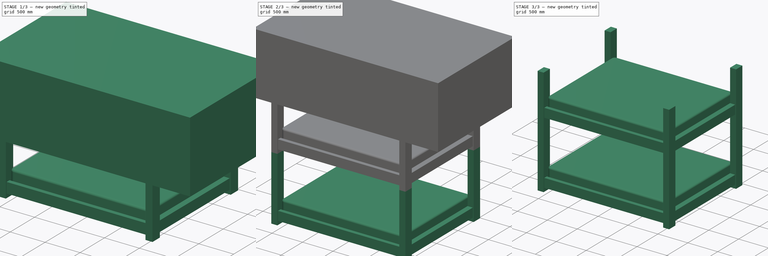
[diagram: build sequence overview — one tinted view per stage of 3, left to right]
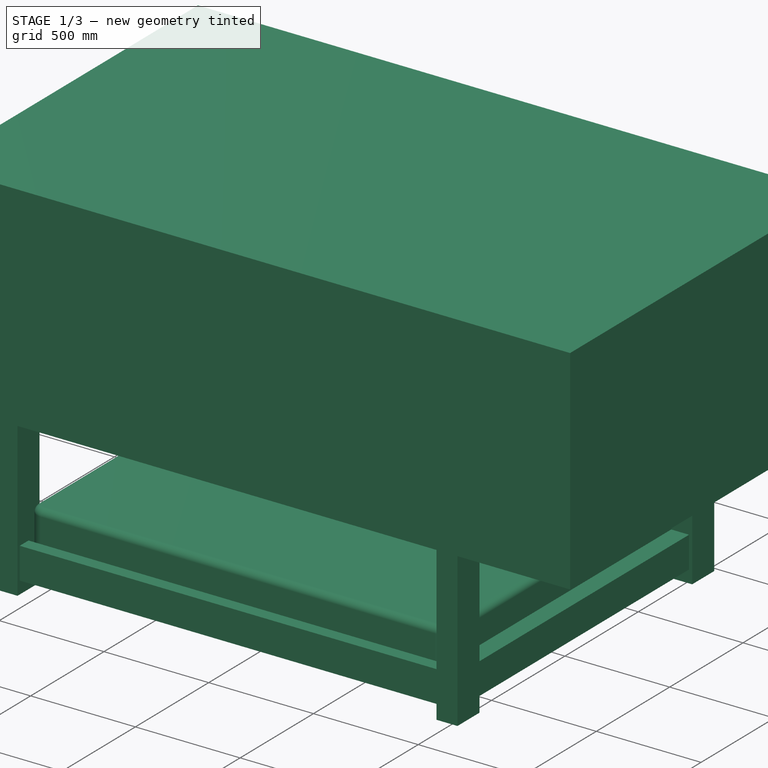
[diagram: stage 1 of 3 — iso view after this stage's code; geometry added in this stage tinted green]
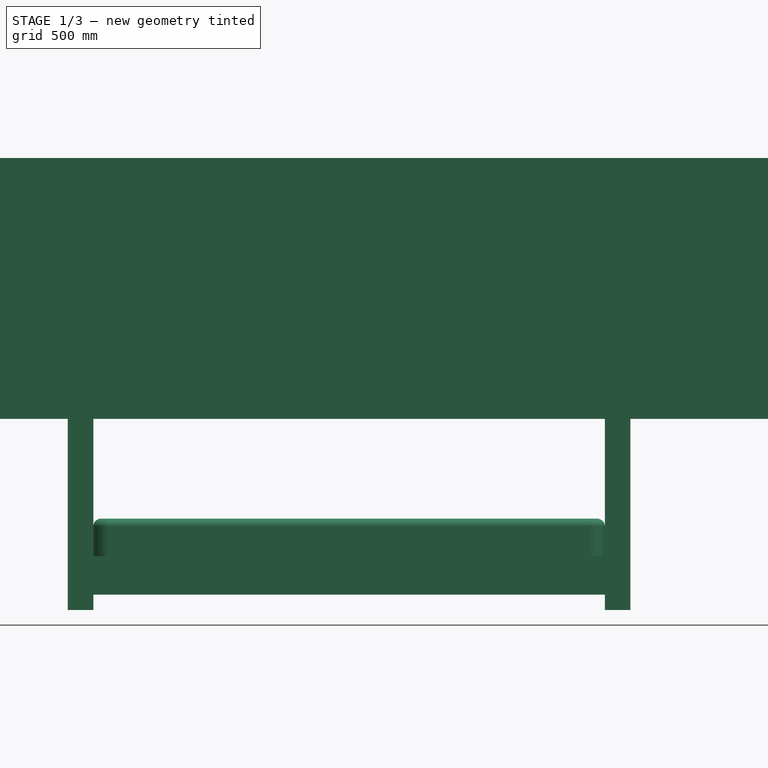
[diagram: stage 1 of 3 — front view after this stage's code; geometry added in this stage tinted green]
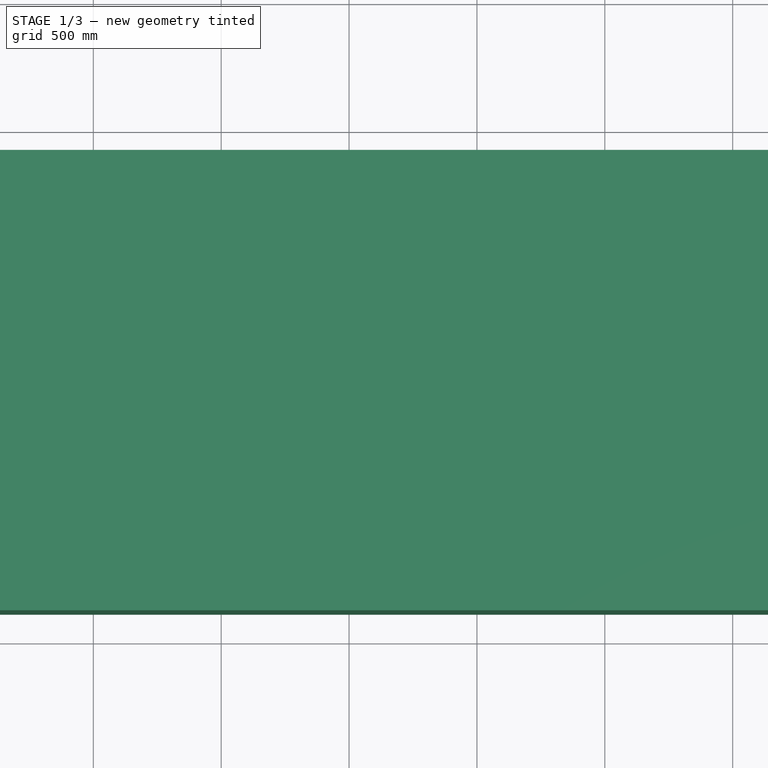
[diagram: stage 1 of 3 — top view after this stage's code; geometry added in this stage tinted green]
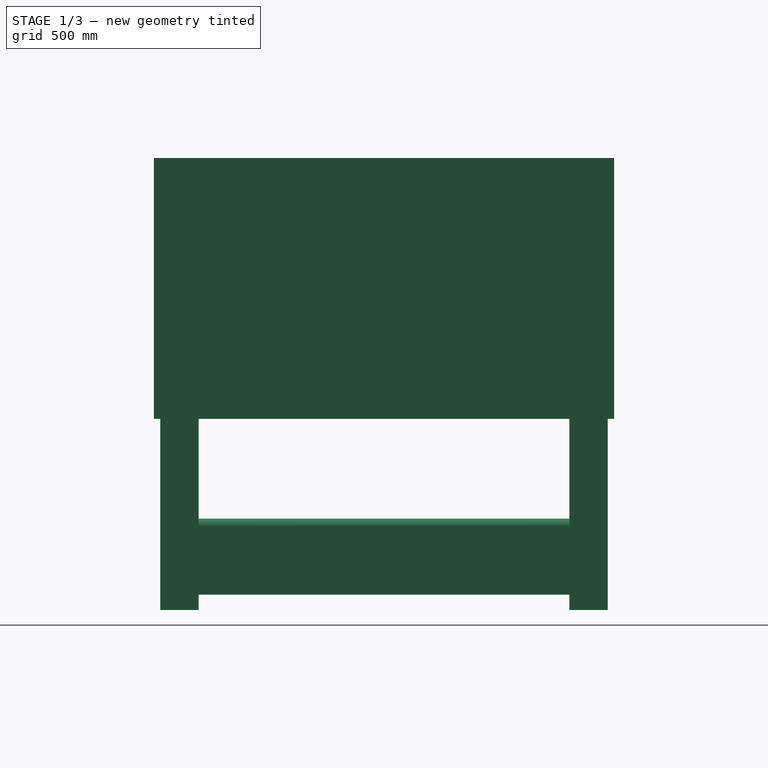
[diagram: stage 1 of 3 — right view after this stage's code; geometry added in this stage tinted green]
FCSTD DOCUMENT  (FreeCAD 0.17R13541 (Git))
Label: 190308 Bett_asm_rev00
License: All rights reserved
LicenseURL: http://en.wikipedia.org/wiki/All_rights_reserved
objects: App::FeaturePython×6, TechDraw::DrawProjGroupItem×6, Drawing::FeatureViewPart×3, Part::FeaturePython×2, Sketcher::SketchObject×2, TechDraw::DrawSVGTemplate×2, TechDraw::DrawProjGroup×2, TechDraw::DrawPage×2, App::Part×1, Part::MultiFuse×1, PartDesign::Pad×1, PartDesign::ShapeBinder×1, PartDesign::Body×1, Part::Cut×1, TechDraw::DrawViewPart×1
note: 10 computed .brp shape members not serialized (recipe doc carries the construction recipe); baked Part::Feature solids carry a one-line shape summary decoded from their .brp

FEATURE [Part::FeaturePython] _90308_Bett_rev00_01001  # a2plus imported part (geometry in sourceFile) (typed FeaturePython)
  Placement = pos=(0,0,1060) rot=(0,0,1;0rad)
  fixedPosition = false
  sourceFile = M:/52 Proj/XX_StudioBinn/Bett/190308 Bett_rev00.FCStd
  timeLastImport = 1.5521e+09
  updateColors = true
FEATURE [Sketcher::SketchObject] Sketch
  MapMode = 5
  Placement = pos=(0,0,0) rot=(1,0,0;1.5708rad)
  Support = -> [XZ_Plane001]
  sketch-geometry (4):
    g0: LineSegment StartX=-1381.83 StartY=2680 StartZ=0 EndX=1655 EndY=2680 EndZ=0
    g1: LineSegment StartX=1655 StartY=2680 StartZ=0 EndX=1655 EndY=1660 EndZ=0
    g2: LineSegment StartX=1655 StartY=1660 StartZ=0 EndX=-1381.83 EndY=1660 EndZ=0
    g3: LineSegment StartX=-1381.83 StartY=1660 StartZ=0 EndX=-1381.83 EndY=2680 EndZ=0
  constraints (8):
    c: Coincident(g0,g1)
    c: Coincident(g1,g2)
    c: Coincident(g2,g3)
    c: Coincident(g3,g0)
    c: Horizontal(g0)
    c: Horizontal(g2)
    c: Vertical(g1)
    c: Vertical(g3)
FEATURE [PartDesign::Pad] Pad
  Length = 1800
  Length2 = 100
  Midplane = true
  Placement = pos=(0,0,0) rot=(1,0,0;1.5708rad)
  Profile = -> Sketch
  Type = 0
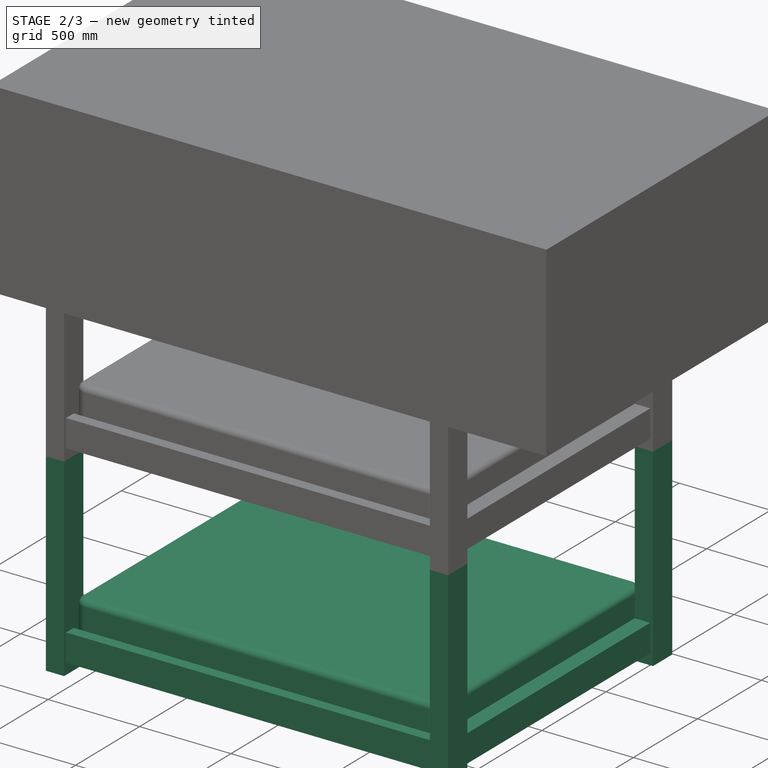
[diagram: stage 2 of 3 — iso view after this stage's code; geometry added in this stage tinted green]
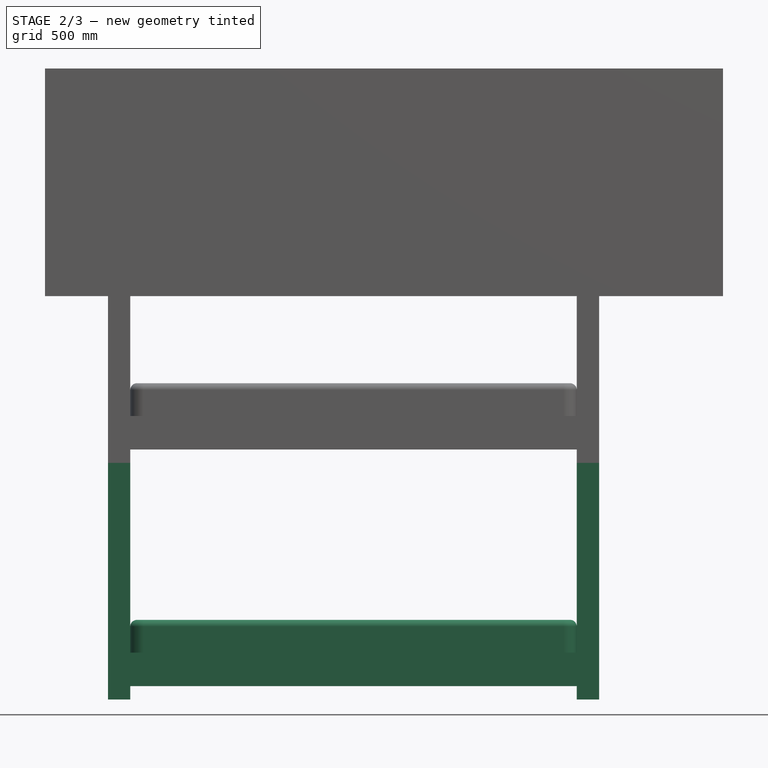
[diagram: stage 2 of 3 — front view after this stage's code; geometry added in this stage tinted green]
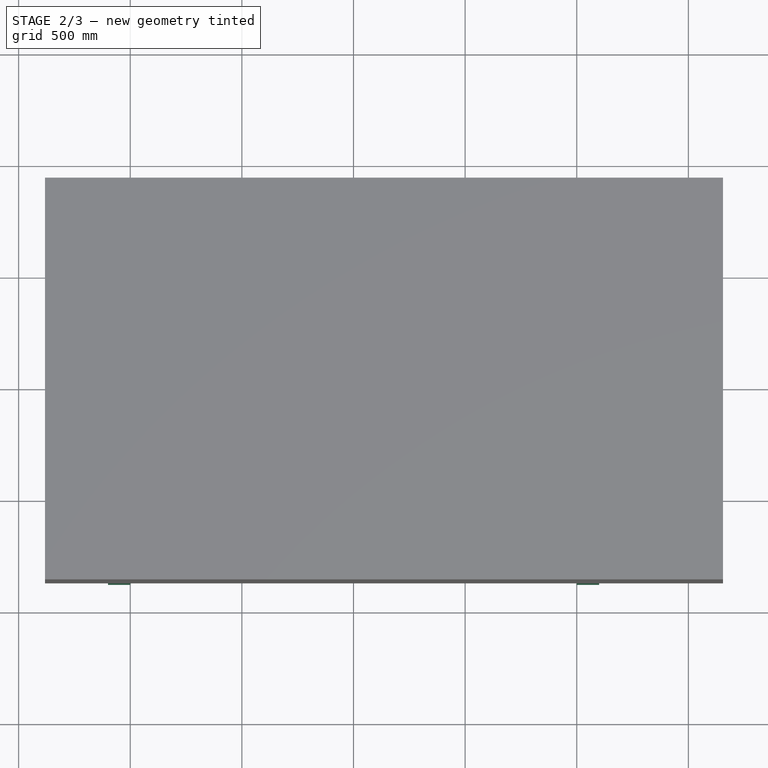
[diagram: stage 2 of 3 — top view after this stage's code; geometry added in this stage tinted green]
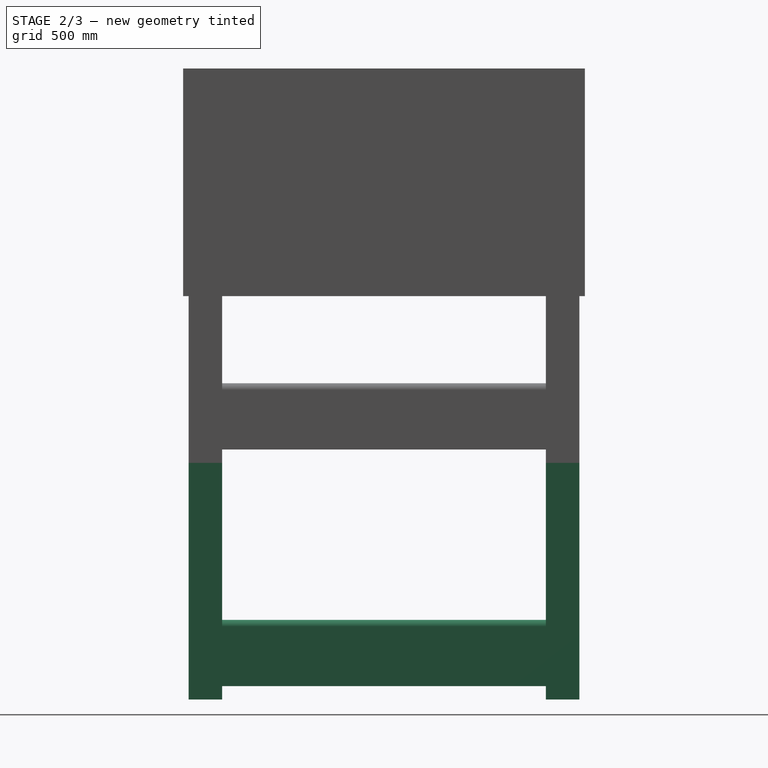
[diagram: stage 2 of 3 — right view after this stage's code; geometry added in this stage tinted green]
FEATURE [App::Part] Part
  License = CC BY 3.0
  LicenseURL = http://creativecommons.org/licenses/by/3.0/
  Origin = -> Origin
FEATURE [Part::FeaturePython] _90308_Bett_rev00_01  # a2plus imported part (geometry in sourceFile) (typed FeaturePython)
  fixedPosition = true
  sourceFile = M:/52 Proj/XX_StudioBinn/Bett/190308 Bett_rev00.FCStd
  timeLastImport = 1.5521e+09
  updateColors = true
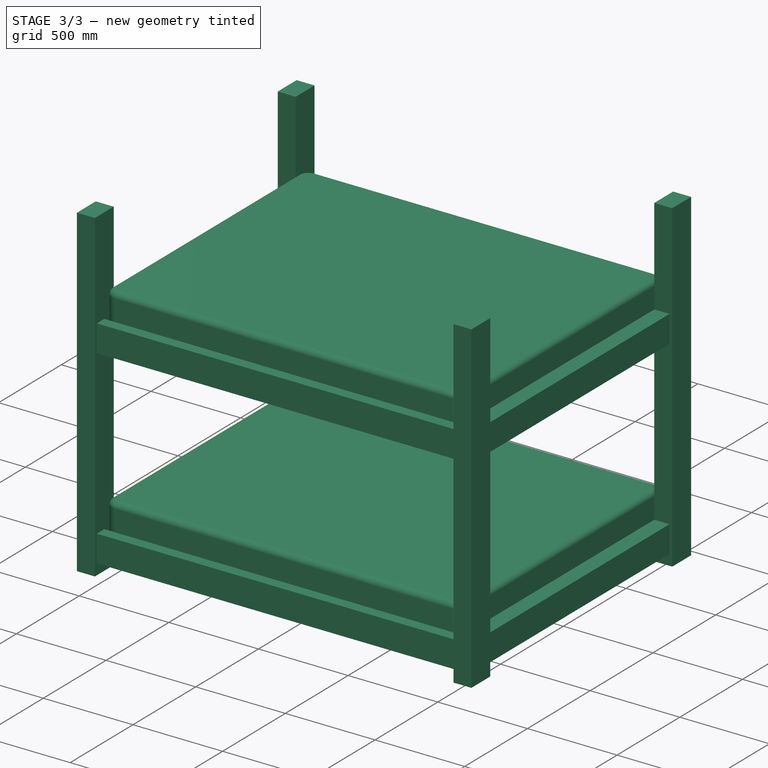
[diagram: stage 3 of 3 — iso view after this stage's code; geometry added in this stage tinted green]
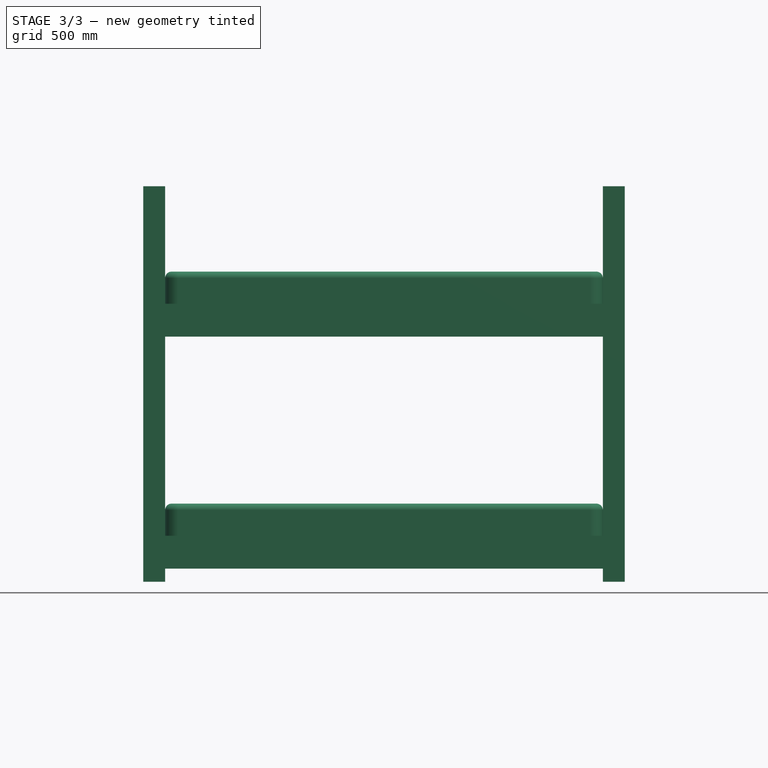
[diagram: stage 3 of 3 — front view after this stage's code; geometry added in this stage tinted green]
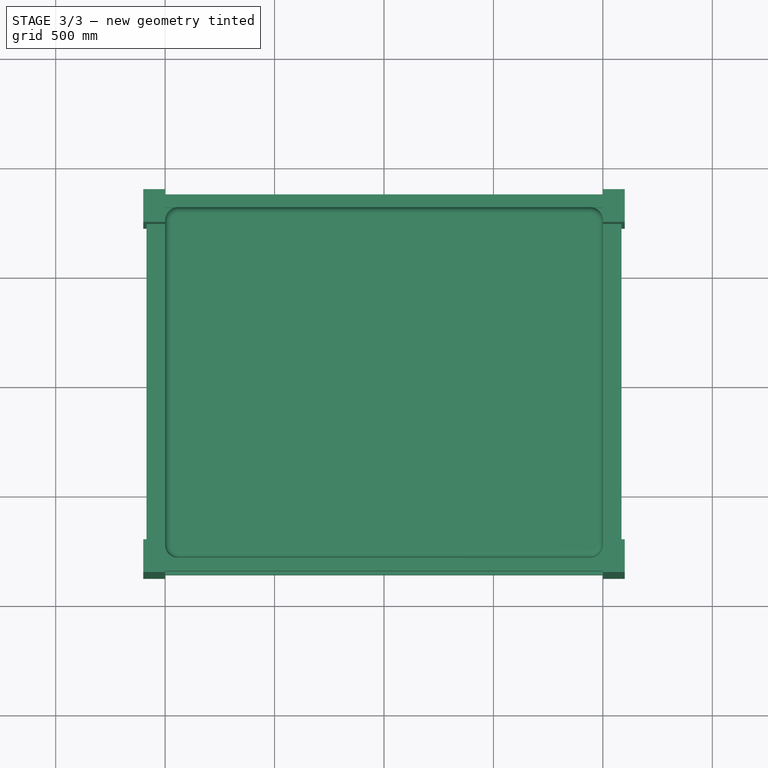
[diagram: stage 3 of 3 — top view after this stage's code; geometry added in this stage tinted green]
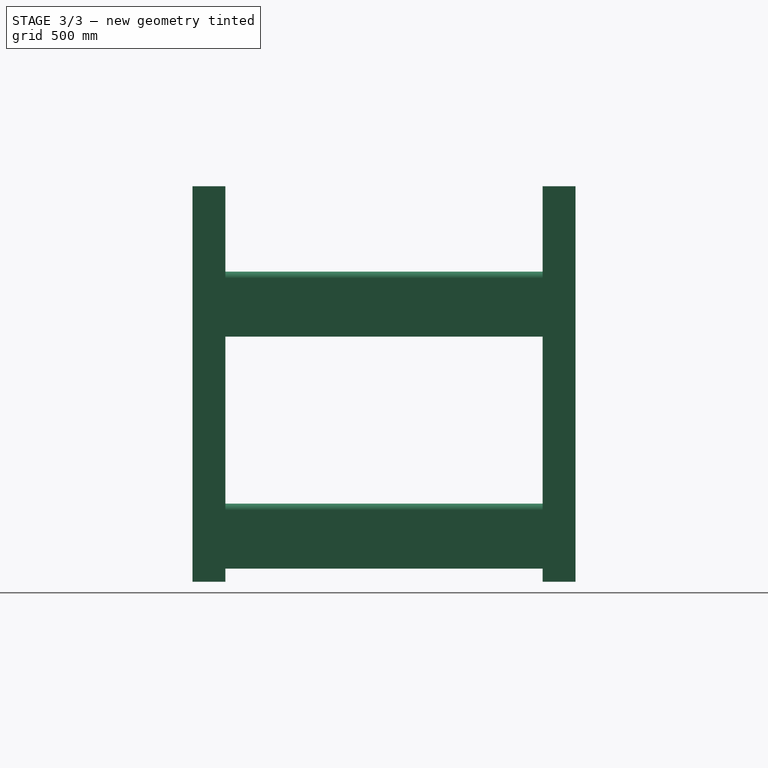
[diagram: stage 3 of 3 — right view after this stage's code; geometry added in this stage tinted green]
FEATURE [App::FeaturePython] planeConstraint01  label="planeConstraint01___90308_Bett_rev00_01"  # a2plus constraint (typed FeaturePython)
  Object1 = _90308_Bett_rev00_01001
  Object2 = _90308_Bett_rev00_01
  SubElement1 = Face54
  SubElement2 = Face54
  Type = plane
  directionConstraint = 0
  offset = 0
FEATURE [App::FeaturePython] planeConstraint01_mirror  label="planeConstraint01___90308_Bett_rev00_01001"  # a2plus constraint (typed FeaturePython)
  Object1 = _90308_Bett_rev00_01001
  Object2 = _90308_Bett_rev00_01
  SubElement1 = Face54
  SubElement2 = Face54
  Type = plane
  directionConstraint = 0
  offset = 0
FEATURE [App::FeaturePython] planeConstraint02  label="planeConstraint02___90308_Bett_rev00_01"  # a2plus constraint (typed FeaturePython)
  Object1 = _90308_Bett_rev00_01001
  Object2 = _90308_Bett_rev00_01
  SubElement1 = Face134
  SubElement2 = Face134
  Type = plane
  directionConstraint = 0
  offset = 0
FEATURE [App::FeaturePython] planeConstraint02_mirror  label="planeConstraint02___90308_Bett_rev00_01001"  # a2plus constraint (typed FeaturePython)
  Object1 = _90308_Bett_rev00_01001
  Object2 = _90308_Bett_rev00_01
  SubElement1 = Face134
  SubElement2 = Face134
  Type = plane
  directionConstraint = 0
  offset = 0
FEATURE [App::FeaturePython] planeConstraint03  label="planeConstraint03___90308_Bett_rev00_01001"  # a2plus constraint (typed FeaturePython)
  Object1 = _90308_Bett_rev00_01
  Object2 = _90308_Bett_rev00_01001
  SubElement1 = Face165
  SubElement2 = Face168
  Type = plane
  directionConstraint = 0
  offset = 0
FEATURE [App::FeaturePython] planeConstraint03_mirror  label="planeConstraint03___90308_Bett_rev00_01"  # a2plus constraint (typed FeaturePython)
  Object1 = _90308_Bett_rev00_01
  Object2 = _90308_Bett_rev00_01001
  SubElement1 = Face165
  SubElement2 = Face168
  Type = plane
  directionConstraint = 0
  offset = 0
FEATURE [Part::MultiFuse] Fusion
  Shapes = -> [_90308_Bett_rev00_01,_90308_Bett_rev00_01001]
FEATURE [PartDesign::ShapeBinder] CopyCut
FEATURE [Sketcher::SketchObject] Sketch001
  MapMode = 5
  Placement = pos=(0,700,0) rot=(1,0,0;1.5708rad)
  Support = -> [CopyCut]
FEATURE [PartDesign::Body] Body
  Group = -> [Sketch,Pad,CopyCut,Sketch001]
  Origin = -> Origin001
  Tip = -> Pad
FEATURE [Part::Cut] Cut
  Base = -> Fusion
  Tool = -> Body
FEATURE [Drawing::FeatureViewPart] Ortho  label="Ortho_0_0"
  Direction = (1,0,0)
  HiddenWidth = 0.15
  LineWidth = 0.35
  Rotation = -90
  Scale = 0.05
  ShowHiddenLines = false
  ShowSmoothLines = false
  Source = -> Body
  Tolerance = 0.05
  ViewResult = <g id="Ortho_0_0"\n   transform="rotate(-90,172.386,387.28) translate(172.386,387.28) scale(0.05,0.05)"\n  >\n<g   fill="none"\n   stroke="rgb(0, 0, 0)"\n   stroke-linecap="butt"\n   stroke-linejoin="miter"\n   stroke-width="7.000000"\n   transform="scale(1,-1)"\n  >\n<path id= "1" d=" M 2680 -900 L 2680 900 " />\n<path id= "2" d=" M 1660 -900 L 1660 900 " />\n<path id= "3" d=" M 2680 -900 L 1660 -900 " />\n<path id= "4" d=" M 2680 900 L 1660 900 " />\n</g>\n</g>
  Visible = true
  X = 172.386
  Y = 387.28
FEATURE [Drawing::FeatureViewPart] Ortho001  label="Ortho_0_1"
  Direction = (0,0,1)
  HiddenWidth = 0.15
  LineWidth = 0.35
  Rotation = 90
  Scale = 0.05
  ShowHiddenLines = false
  ShowSmoothLines = false
  Source = -> Body
  Tolerance = 0.05
  ViewResult = <g id="Ortho_0_1"\n   transform="rotate(90,172.386,124.811) translate(172.386,124.811) scale(0.05,0.05)"\n  >\n<g   fill="none"\n   stroke="rgb(0, 0, 0)"\n   stroke-linecap="butt"\n   stroke-linejoin="miter"\n   stroke-width="7.000000"\n   transform="scale(1,-1)"\n  >\n<path id= "1" d=" M -1381.83 900 L -1381.83 -900 " />\n<path id= "2" d=" M 1655 900 L 1655 -900 " />\n<path id= "3" d=" M -1381.83 900 L 1655 900 " />\n<path id= "4" d=" M -1381.83 -900 L 1655 -900 " />\n</g>\n</g>
  Visible = true
  X = 172.386
  Y = 124.811
FEATURE [Drawing::FeatureViewPart] Ortho002  label="Ortho_1_0"
  Direction = (0,1,0)
  HiddenWidth = 0.15
  LineWidth = 0.35
  Rotation = -90
  Scale = 0.05
  ShowHiddenLines = false
  ShowSmoothLines = false
  Source = -> Body
  Tolerance = 0.05
  ViewResult = <g id="Ortho_1_0"\n   transform="rotate(-90,407.522,387.28) translate(407.522,387.28) scale(0.05,0.05)"\n  >\n<g   fill="none"\n   stroke="rgb(0, 0, 0)"\n   stroke-linecap="butt"\n   stroke-linejoin="miter"\n   stroke-width="7.000000"\n   transform="scale(1,-1)"\n  >\n<path id= "1" d=" M 2680 -1381.83 L 2680 1655 " />\n<path id= "2" d=" M 2680 1655 L 1660 1655 " />\n<path id= "3" d=" M 1660 1655 L 1660 -1381.83 " />\n<path id= "4" d=" M 1660 -1381.83 L 2680 -1381.83 " />\n</g>\n</g>
  Visible = true
  X = 407.522
  Y = 387.28
FEATURE [TechDraw::DrawSVGTemplate] Template
  EditableTexts = Designed_by_Name=Designed by Name; Drawing_number=Drawing number; FC-Date=Date; FC-SC=Scale; FC-SH=Sheet; FC-Title=Title; Subtitle=Subtitle; Weight=Weight
  Height = 210
  Orientation = 1
  Width = 297
FEATURE [TechDraw::DrawProjGroupItem] ProjItem  label="Front"
  CoarseView = false
  Direction = (0,-1,0)
  Focus = 100
  HardHidden = false
  IsoCount = 0
  IsoHidden = false
  IsoVisible = false
  LockPosition = false
  Perspective = false
  Rotation = 0
  RotationVector = (1,0,0)
  ScaleType = 0
  SeamHidden = false
  SeamVisible = false
  SmoothHidden = false
  SmoothVisible = false
  Source = -> [Cut]
  Type = 0
  X = 0
  Y = 0
FEATURE [TechDraw::DrawProjGroupItem] ProjItem001  label="Left"
  CoarseView = false
  Direction = (-1,0,0)
  Focus = 100
  HardHidden = false
  IsoCount = 0
  IsoHidden = false
  IsoVisible = false
  LockPosition = false
  Perspective = false
  Rotation = 0
  RotationVector = (0,1,0)
  Scale = 0.05
  ScaleType = 2
  SeamHidden = false
  SeamVisible = false
  SmoothHidden = false
  SmoothVisible = false
  Source = -> [Cut]
  Type = 1
  X = 125
  Y = 0
FEATURE [TechDraw::DrawProjGroupItem] ProjItem002  label="Top"
  CoarseView = false
  Direction = (0,0,1)
  Focus = 100
  HardHidden = false
  IsoCount = 0
  IsoHidden = false
  IsoVisible = false
  LockPosition = false
  Perspective = false
  Rotation = 0
  RotationVector = (1,0,0)
  Scale = 0.05
  ScaleType = 2
  SeamHidden = false
  SeamVisible = false
  SmoothHidden = false
  SmoothVisible = false
  Source = -> [Cut]
  Type = 4
  X = 0
  Y = -105.35
FEATURE [TechDraw::DrawProjGroup] ProjGroup
  Anchor = -> ProjItem
  AutoDistribute = true
  CubeDirs = (1) [(0,0,0)]
  CubeRotations = (1) [(0,0,0)]
  LockPosition = false
  ProjectionType = 0
  Rotation = 0
  Scale = 0.05
  ScaleType = 2
  Source = -> [Cut]
  Views = -> [ProjItem,ProjItem001,ProjItem002]
  X = 82.6962
  Y = 150.308
  spacingX = 15
  spacingY = 15
FEATURE [TechDraw::DrawPage] Page
  KeepUpdated = true
  ProjectionType = 0
  Template = -> Template
  Views = -> [ProjGroup]
FEATURE [TechDraw::DrawSVGTemplate] Template001
  Height = 297
  Orientation = 1
  Width = 420
FEATURE [TechDraw::DrawProjGroupItem] ProjItem003  label="Front001"
  CoarseView = false
  Direction = (0,-1,0)
  Focus = 100
  HardHidden = false
  IsoCount = 0
  IsoHidden = false
  IsoVisible = false
  LockPosition = false
  Perspective = false
  Rotation = 0
  RotationVector = (1,0,0)
  Scale = 0.05
  ScaleType = 0
  SeamHidden = false
  SeamVisible = false
  SmoothHidden = false
  SmoothVisible = false
  Source = -> [Cut]
  Type = 0
  X = 0
  Y = -1e-12
FEATURE [TechDraw::DrawProjGroupItem] ProjItem004  label="Top001"
  CoarseView = false
  Direction = (0,0,1)
  Focus = 100
  HardHidden = false
  IsoCount = 0
  IsoHidden = false
  IsoVisible = false
  LockPosition = false
  Perspective = false
  Rotation = 0
  RotationVector = (1,0,0)
  Scale = 0.05
  ScaleType = 0
  SeamHidden = false
  SeamVisible = false
  SmoothHidden = false
  SmoothVisible = false
  Source = -> [Cut]
  Type = 4
  X = 0
  Y = -105.35
FEATURE [TechDraw::DrawProjGroupItem] ProjItem005  label="Left001"
  CoarseView = false
  Direction = (-1,0,0)
  Focus = 100
  HardHidden = false
  IsoCount = 0
  IsoHidden = false
  IsoVisible = false
  LockPosition = false
  Perspective = false
  Rotation = 0
  RotationVector = (0,1,0)
  Scale = 0.05
  ScaleType = 0
  SeamHidden = false
  SeamVisible = false
  SmoothHidden = false
  SmoothVisible = false
  Source = -> [Cut]
  Type = 1
  X = 125
  Y = 0
FEATURE [TechDraw::DrawProjGroup] ProjGroup001
  Anchor = -> ProjItem003
  AutoDistribute = true
  CubeDirs = (1) [(0,0,0)]
  CubeRotations = (1) [(0,0,0)]
  LockPosition = false
  ProjectionType = 0
  Rotation = 0
  Scale = 0.05
  ScaleType = 0
  Source = -> [Cut]
  Views = -> [ProjItem003,ProjItem004,ProjItem005]
  X = 103.804
  Y = 218.833
  spacingX = 15
  spacingY = 15
FEATURE [TechDraw::DrawViewPart] View
  CoarseView = false
  Direction = (0,0,1)
  Focus = 100
  HardHidden = false
  IsoCount = 0
  IsoHidden = false
  IsoVisible = false
  LockPosition = false
  Perspective = false
  Rotation = 0
  Scale = 0.05
  ScaleType = 0
  SeamHidden = false
  SeamVisible = false
  SmoothHidden = false
  SmoothVisible = false
  Source = -> [Cut]
  X = 294.674
  Y = 102.73
FEATURE [TechDraw::DrawPage] Page001
  KeepUpdated = true
  ProjectionType = 0
  Scale = 0.05
  Template = -> Template001
  Views = -> [ProjGroup001,View]
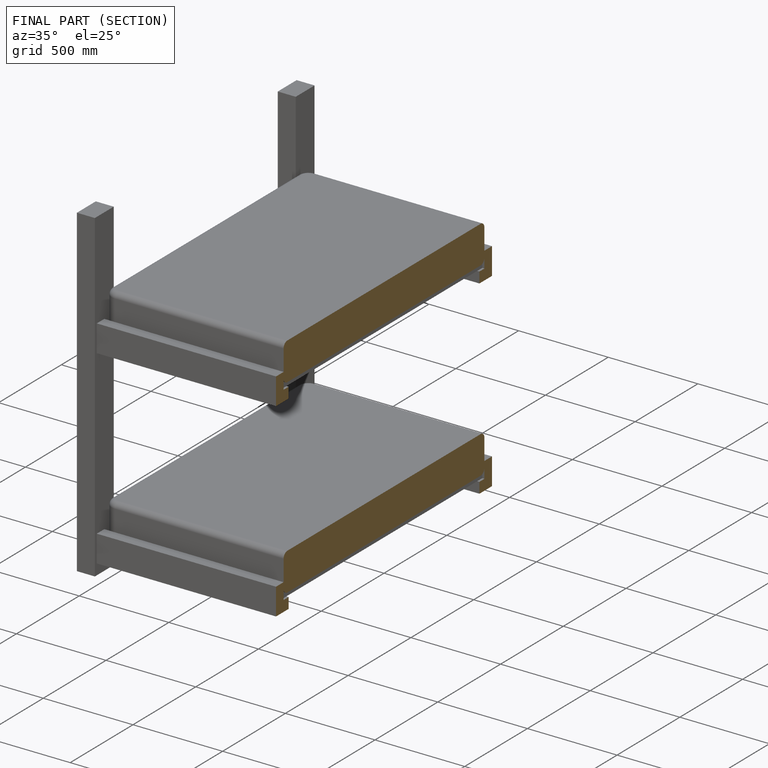
[diagram: finished part — half-section view (interior)]
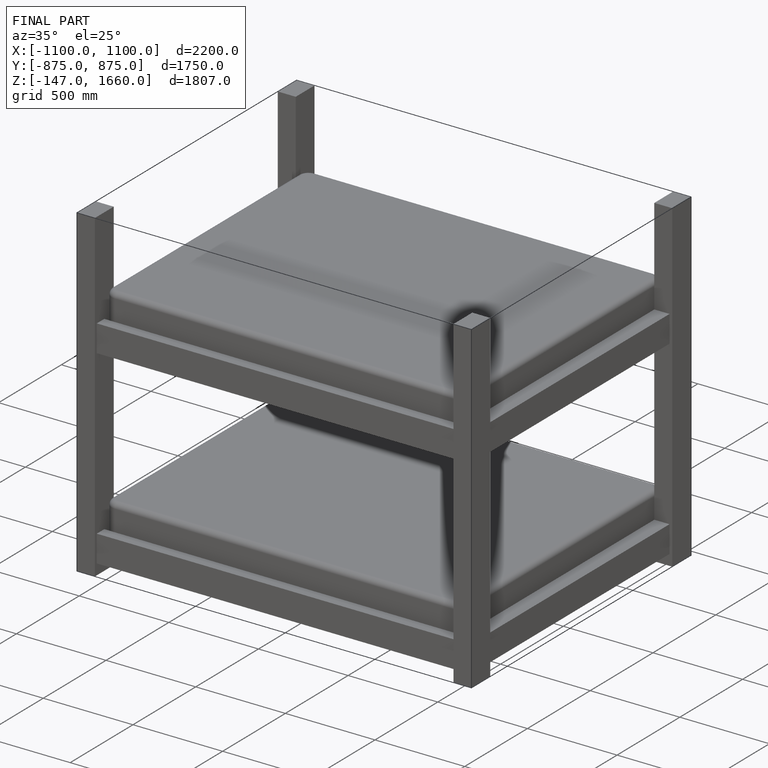
[diagram: finished part — iso view with bounding-box wireframe]
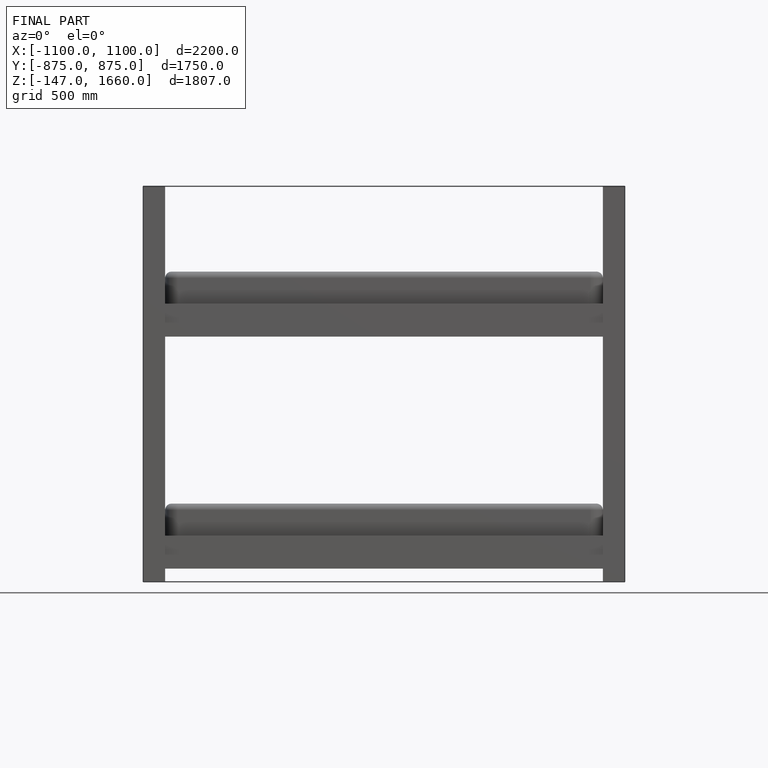
[diagram: finished part — front view with bounding-box wireframe]
